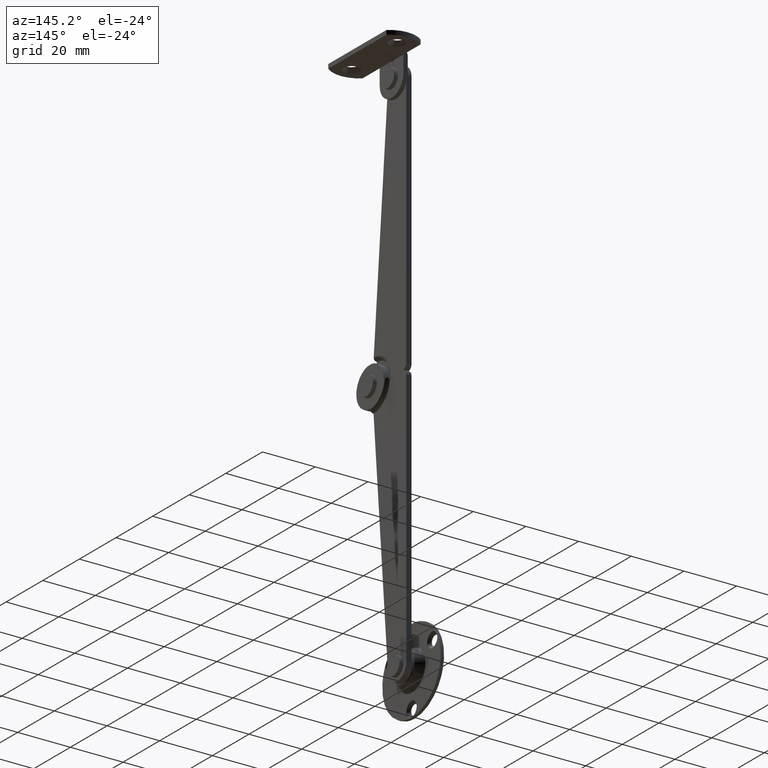
[diagram: clean part render]
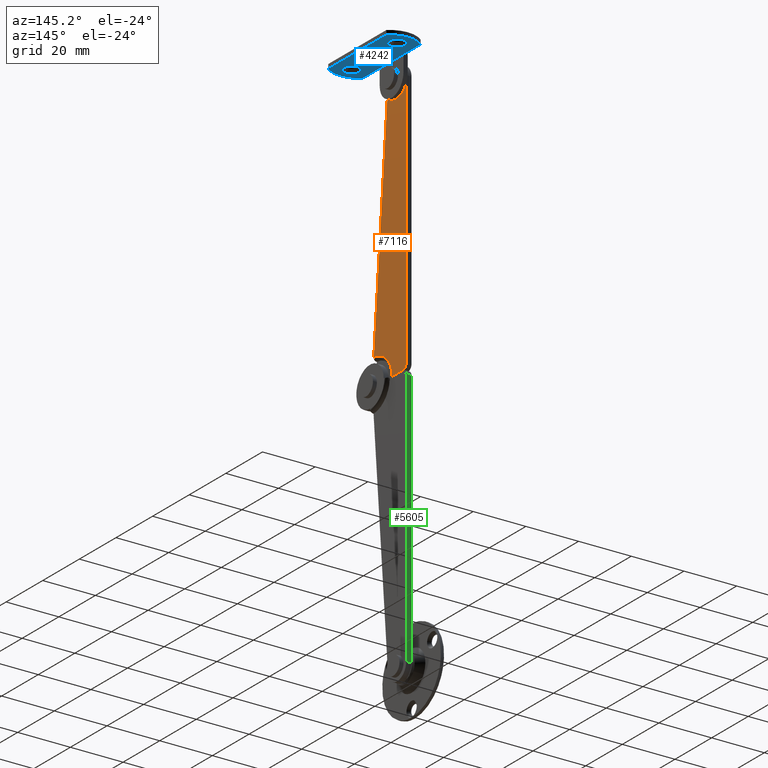
[diagram: same view with three faces highlighted in distinct colors, each labeled with its STEP entity id]
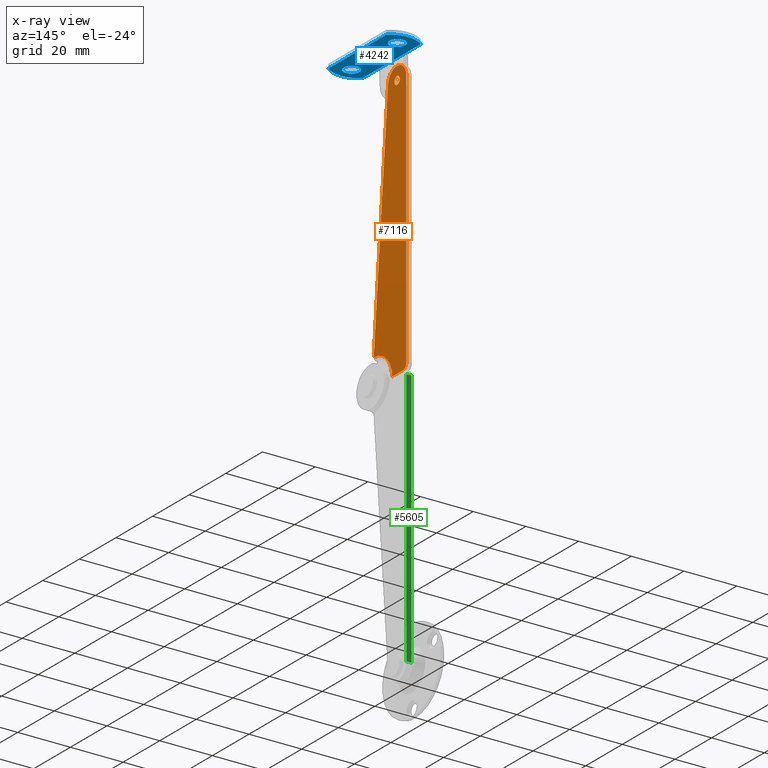
[diagram: x-ray of the same camera — body ghosted, the three highlighted faces saturated]
A machine part, auxiliary view with three faces highlighted in distinct colors.
The next image is the same camera in x-ray (body ghosted, the three faces saturated) — at least one of them is partly hidden behind the body in this view.
Their STEP definitions:

[orange] entity #7116 — the highlighted face is a freeform B-spline surface patch.
#6484=CARTESIAN_POINT('',(6.699993133544766,13.000000000000011,101.499984741210800));
#6485=VERTEX_POINT('',#6484);
#6486=CARTESIAN_POINT('',(6.699993133544766,14.495376000464150,100.117673386524900));
#6487=VERTEX_POINT('',#6486);
#6488=CARTESIAN_POINT('',(6.699993133544766,13.000000000000011,101.499984741210800));
#6489=CARTESIAN_POINT('',(6.699993133544766,14.386585735885328,101.499984741210770));
#6490=CARTESIAN_POINT('',(6.699993133544766,14.495376000464146,100.117673386524900));
#6498=(BOUNDED_CURVE()B_SPLINE_CURVE(2,(#6488,#6489,#6490),.UNSPECIFIED.,.F.,.U.)B_SPLINE_CURVE_WITH_KNOTS((3,3),(0.0,0.236331300435323),.UNSPECIFIED.)CURVE()GEOMETRIC_REPRESENTATION_ITEM()RATIONAL_B_SPLINE_CURVE((1.0,0.723120658836517,0.969723355759765))REPRESENTATION_ITEM(''));
#6499=EDGE_CURVE('',#6485,#6487,#6498,.T.);
#6501=CARTESIAN_POINT('',(6.699993133544766,11.504623999535870,99.882296095896663));
#6502=VERTEX_POINT('',#6501);
#6503=CARTESIAN_POINT('',(6.699993133544767,11.504623999535873,99.882296095896635));
#6504=CARTESIAN_POINT('',(6.699993133544766,11.500000000000014,99.941049579834086));
#6505=CARTESIAN_POINT('',(6.699993133544766,11.500000000000011,99.999984741210767));
#6506=CARTESIAN_POINT('',(6.699993133544765,11.500000000000012,101.499984741210770));
#6507=CARTESIAN_POINT('',(6.699993133544766,13.000000000000011,101.499984741210800));
#6515=(BOUNDED_CURVE()B_SPLINE_CURVE(2,(#6503,#6504,#6505,#6506,#6507),.UNSPECIFIED.,.F.,.U.)B_SPLINE_CURVE_WITH_KNOTS((3,2,3),(0.736331300435324,0.750000000000000,1.0),.UNSPECIFIED.)CURVE()GEOMETRIC_REPRESENTATION_ITEM()RATIONAL_B_SPLINE_CURVE((0.969723355759767,0.983986122350032,1.0,0.707106781186548,1.0))REPRESENTATION_ITEM(''));
#6516=EDGE_CURVE('',#6502,#6485,#6515,.T.);
#6583=CARTESIAN_POINT('',(6.699993133544766,13.000000000000011,98.499984741210753));
#6584=VERTEX_POINT('',#6583);
#6585=CARTESIAN_POINT('',(6.699993133544765,14.495376000464150,100.117673386524870));
#6586=CARTESIAN_POINT('',(6.699993133544765,14.500000000000005,100.058919902587430));
#6587=CARTESIAN_POINT('',(6.699993133544766,14.500000000000011,99.999984741210767));
#6588=CARTESIAN_POINT('',(6.699993133544765,14.500000000000016,98.499984741210767));
#6589=CARTESIAN_POINT('',(6.699993133544766,13.000000000000011,98.499984741210753));
#6597=(BOUNDED_CURVE()B_SPLINE_CURVE(2,(#6585,#6586,#6587,#6588,#6589),.UNSPECIFIED.,.F.,.U.)B_SPLINE_CURVE_WITH_KNOTS((3,2,3),(0.236331300435325,0.250000000000000,0.500000000000000),.UNSPECIFIED.)CURVE()GEOMETRIC_REPRESENTATION_ITEM()RATIONAL_B_SPLINE_CURVE((0.969723355759769,0.983986122350033,1.0,0.707106781186548,1.0))REPRESENTATION_ITEM(''));
#6598=EDGE_CURVE('',#6487,#6584,#6597,.T.);
#6632=CARTESIAN_POINT('',(6.699993133544766,13.000000000000011,98.499984741210753));
#6633=CARTESIAN_POINT('',(6.699993133544766,11.613414264114658,98.499984741210753));
#6634=CARTESIAN_POINT('',(6.699993133544766,11.504623999535866,99.882296095896677));
#6642=(BOUNDED_CURVE()B_SPLINE_CURVE(2,(#6632,#6633,#6634),.UNSPECIFIED.,.F.,.U.)B_SPLINE_CURVE_WITH_KNOTS((3,3),(0.500000000000000,0.736331300435326),.UNSPECIFIED.)CURVE()GEOMETRIC_REPRESENTATION_ITEM()RATIONAL_B_SPLINE_CURVE((1.0,0.723120658836513,0.969723355759771))REPRESENTATION_ITEM(''));
#6643=EDGE_CURVE('',#6584,#6502,#6642,.T.);
#6762=CARTESIAN_POINT('',(6.699993133544764,0.232773543082927,10.197343599077200));
#6763=VERTEX_POINT('',#6762);
#6807=CARTESIAN_POINT('',(6.699993133544765,10.200000000000010,5.684342E-014));
#6808=VERTEX_POINT('',#6807);
#6822=CARTESIAN_POINT('',(6.699993133544764,0.232773543082927,10.197343599077200));
#6823=CARTESIAN_POINT('',(6.699993133544805,10.200000000000012,9.969822912484233));
#6824=CARTESIAN_POINT('',(6.699993133544805,10.200000000000010,2.524355E-029));
#6832=(BOUNDED_CURVE()B_SPLINE_CURVE(2,(#6822,#6823,#6824),.UNSPECIFIED.,.F.,.U.)CURVE()GEOMETRIC_REPRESENTATION_ITEM()QUASI_UNIFORM_CURVE()RATIONAL_B_SPLINE_CURVE((1.0,0.715129685999807,1.0))REPRESENTATION_ITEM(''));
#6833=EDGE_CURVE('',#6763,#6808,#6832,.T.);
#7048=CARTESIAN_POINT('',(6.699993133544806,18.887472927086680,110.239473305929910));
#7049=CARTESIAN_POINT('',(6.699993133544804,-0.654699860557900,110.239473305929910));
#7050=CARTESIAN_POINT('',(6.699993133544806,18.887472927086680,-5.244501590536488));
#7051=CARTESIAN_POINT('',(6.699993133544804,-0.654699860557900,-5.244501590536488));
#7052=B_SPLINE_SURFACE_WITH_KNOTS('',1,1,((#7048,#7050),(#7049,#7051)),.UNSPECIFIED.,.F.,.F.,.U.,(2,2),(2,2),(0.0,19.542172787644589),(0.0,115.483974896466410),.UNSPECIFIED.);
#7053=CARTESIAN_POINT('',(6.699993133544765,8.020030799330062,100.447094079492500));
#7054=VERTEX_POINT('',#7053);
#7055=CARTESIAN_POINT('',(6.699993133544764,0.232773543082927,10.197343599077200));
#7056=CARTESIAN_POINT('',(6.699993133544765,8.020030799330062,100.447094079492500));
#7057=QUASI_UNIFORM_CURVE('',1,(#7055,#7056),.UNSPECIFIED.,.F.,.U.);
#7058=EDGE_CURVE('',#6763,#7054,#7057,.T.);
#7059=ORIENTED_EDGE('',*,*,#7058,.F.);
#7060=ORIENTED_EDGE('',*,*,#6833,.T.);
#7061=CARTESIAN_POINT('',(6.699993133544766,16.000000000000011,-1.127987E-013));
#7062=VERTEX_POINT('',#7061);
#7063=CARTESIAN_POINT('',(6.699993133544766,16.000000000000011,-1.127987E-013));
#7064=CARTESIAN_POINT('',(6.699993133544765,10.200000000000010,5.684342E-014));
#7065=QUASI_UNIFORM_CURVE('',1,(#7063,#7064),.UNSPECIFIED.,.F.,.U.);
#7066=EDGE_CURVE('',#7062,#6808,#7065,.T.);
#7067=ORIENTED_EDGE('',*,*,#7066,.F.);
#7068=CARTESIAN_POINT('',(6.699993133544766,18.000000000000011,1.999996185302737));
#7069=VERTEX_POINT('',#7068);
#7070=CARTESIAN_POINT('',(6.699993133544766,18.000000000000011,1.999996185302737));
#7071=CARTESIAN_POINT('',(6.699993133544766,17.999996185306497,-1.131595E-013));
#7072=CARTESIAN_POINT('',(6.699993133544766,16.000000000000011,-1.131595E-013));
#7080=(BOUNDED_CURVE()B_SPLINE_CURVE(2,(#7070,#7071,#7072),.UNSPECIFIED.,.F.,.U.)CURVE()GEOMETRIC_REPRESENTATION_ITEM()QUASI_UNIFORM_CURVE()RATIONAL_B_SPLINE_CURVE((1.0,0.707107455535781,1.0))REPRESENTATION_ITEM(''));
#7081=EDGE_CURVE('',#7069,#7062,#7080,.T.);
#7082=ORIENTED_EDGE('',*,*,#7081,.F.);
#7083=CARTESIAN_POINT('',(6.699993133544766,18.000000000000011,99.999984741210852));
#7084=VERTEX_POINT('',#7083);
#7085=CARTESIAN_POINT('',(6.699993133544766,18.000000000000011,99.999984741210852));
#7086=CARTESIAN_POINT('',(6.699993133544766,18.000000000000011,1.999996185302737));
#7087=QUASI_UNIFORM_CURVE('',1,(#7085,#7086),.UNSPECIFIED.,.F.,.U.);
#7088=EDGE_CURVE('',#7084,#7069,#7087,.T.);
#7089=ORIENTED_EDGE('',*,*,#7088,.F.);
#7090=CARTESIAN_POINT('',(6.699993133544765,8.020030799330062,100.447094079492500));
#7091=CARTESIAN_POINT('',(6.699993133544765,8.055472427973955,100.842908539388700));
#7092=CARTESIAN_POINT('',(6.699993133544759,8.204976702329081,101.547610234986810));
#7093=CARTESIAN_POINT('',(6.699993133544771,8.729471760465373,102.712558277085710));
#7094=CARTESIAN_POINT('',(6.699993133544755,9.571493150787227,103.741728513938500));
#7095=CARTESIAN_POINT('',(6.699993133544755,10.639559825549959,104.452126970152800));
#7096=CARTESIAN_POINT('',(6.699993133544764,11.605357012448760,104.829325791545900));
#7097=CARTESIAN_POINT('',(6.699993133544779,12.741385270892110,105.052558014964300));
#7098=CARTESIAN_POINT('',(6.699993133544747,14.067943707690610,104.961355801454400));
#7099=CARTESIAN_POINT('',(6.699993133544780,15.302666782361550,104.486852303385600));
#7100=CARTESIAN_POINT('',(6.699993133544721,16.395277641854040,103.750565683522500));
#7101=CARTESIAN_POINT('',(6.699993133544790,17.214530796697218,102.807635773487310));
#7102=CARTESIAN_POINT('',(6.699993133544760,17.845740020617711,101.470098300176800));
#7103=CARTESIAN_POINT('',(6.699993133544764,18.000390880476129,100.556378557983900));
#7104=CARTESIAN_POINT('',(6.699993133544766,18.000000000000011,99.999984741210852));
#7105=B_SPLINE_CURVE_WITH_KNOTS('',3,(#7090,#7091,#7092,#7093,#7094,#7095,#7096,#7097,#7098,#7099,#7100,#7101,#7102,#7103,#7104),.UNSPECIFIED.,.F.,.U.,(4,1,1,1,1,1,1,1,1,1,1,1,4),(0.000000137094867,1.192201430622015,2.146013618845815,3.815161052552515,5.126622296159052,5.961270864849338,6.914975014532722,8.583999638188598,9.895492978229958,10.849318337223410,12.518510980403700,13.591560836829000,15.260617336294180),.UNSPECIFIED.);
#7106=EDGE_CURVE('',#7054,#7084,#7105,.T.);
#7107=ORIENTED_EDGE('',*,*,#7106,.F.);
#7108=EDGE_LOOP('',(#7059,#7060,#7067,#7082,#7089,#7107));
#7109=FACE_OUTER_BOUND('',#7108,.T.);
#7110=ORIENTED_EDGE('',*,*,#6643,.T.);
#7111=ORIENTED_EDGE('',*,*,#6516,.T.);
#7112=ORIENTED_EDGE('',*,*,#6499,.T.);
#7113=ORIENTED_EDGE('',*,*,#6598,.T.);
#7114=EDGE_LOOP('',(#7110,#7111,#7112,#7113));
#7115=FACE_BOUND('',#7114,.T.);
#7116=ADVANCED_FACE('',(#7109,#7115),#7052,.T.);

[blue] entity #4242 — the highlighted face is a freeform B-spline surface patch.
#3333=CARTESIAN_POINT('',(15.064621943504211,-2.490752001528418,105.999984740381900));
#3334=VERTEX_POINT('',#3333);
#3340=CARTESIAN_POINT('',(12.299999237061931,0.500000000000070,105.999984741210600));
#3341=VERTEX_POINT('',#3340);
#3342=CARTESIAN_POINT('',(12.299999237061931,0.500000000000070,105.999984741210600));
#3343=CARTESIAN_POINT('',(12.299999237029416,-2.273171469519395,105.999984740796220));
#3344=CARTESIAN_POINT('',(15.064621943504207,-2.490752001528418,105.999984740381830));
#3352=(BOUNDED_CURVE()B_SPLINE_CURVE(2,(#3342,#3343,#3344),.UNSPECIFIED.,.F.,.U.)B_SPLINE_CURVE_WITH_KNOTS((3,3),(0.0,0.236331300271173),.UNSPECIFIED.)CURVE()GEOMETRIC_REPRESENTATION_ITEM()RATIONAL_B_SPLINE_CURVE((1.0,0.723120659028830,0.969723355417197))REPRESENTATION_ITEM(''));
#3353=EDGE_CURVE('',#3341,#3334,#3352,.T.);
#3355=CARTESIAN_POINT('',(15.535376530618290,3.490752001528553,105.999984740381900));
#3356=VERTEX_POINT('',#3355);
#3357=CARTESIAN_POINT('',(15.535376530618286,3.490752001528553,105.999984740381850));
#3358=CARTESIAN_POINT('',(15.417869561316985,3.500000000810654,105.999984740396930));
#3359=CARTESIAN_POINT('',(15.299999237123821,3.500000000794422,105.999984740413200));
#3360=CARTESIAN_POINT('',(12.299999237091987,3.500000000381287,105.999984740827530));
#3361=CARTESIAN_POINT('',(12.299999237061931,0.500000000000070,105.999984741210600));
#3369=(BOUNDED_CURVE()B_SPLINE_CURVE(2,(#3357,#3358,#3359,#3360,#3361),.UNSPECIFIED.,.F.,.U.)B_SPLINE_CURVE_WITH_KNOTS((3,2,3),(0.736331300271173,0.750000000000000,1.0),.UNSPECIFIED.)CURVE()GEOMETRIC_REPRESENTATION_ITEM()RATIONAL_B_SPLINE_CURVE((0.969723355417197,0.983986122157718,1.0,0.707106781186547,1.0))REPRESENTATION_ITEM(''));
#3370=EDGE_CURVE('',#3356,#3341,#3369,.T.);
#3462=CARTESIAN_POINT('',(18.299999237060572,0.500000000000070,105.999984741210600));
#3463=VERTEX_POINT('',#3462);
#3464=CARTESIAN_POINT('',(18.299999237060572,0.500000000000070,105.999984741210600));
#3465=CARTESIAN_POINT('',(18.299999237093076,3.273171469519531,105.999984740796220));
#3466=CARTESIAN_POINT('',(15.535376530618286,3.490752001528553,105.999984740381850));
#3474=(BOUNDED_CURVE()B_SPLINE_CURVE(2,(#3464,#3465,#3466),.UNSPECIFIED.,.F.,.U.)B_SPLINE_CURVE_WITH_KNOTS((3,3),(0.500000000000000,0.736331300271173),.UNSPECIFIED.)CURVE()GEOMETRIC_REPRESENTATION_ITEM()RATIONAL_B_SPLINE_CURVE((1.0,0.723120659028830,0.969723355417197))REPRESENTATION_ITEM(''));
#3475=EDGE_CURVE('',#3463,#3356,#3474,.T.);
#3477=CARTESIAN_POINT('',(15.064621943504209,-2.490752001528418,105.999984740381850));
#3478=CARTESIAN_POINT('',(15.182128912805513,-2.500000000810519,105.999984740396930));
#3479=CARTESIAN_POINT('',(15.299999236998680,-2.500000000794286,105.999984740413200));
#3480=CARTESIAN_POINT('',(18.299999237030512,-2.500000000381149,105.999984740827530));
#3481=CARTESIAN_POINT('',(18.299999237060572,0.500000000000070,105.999984741210600));
#3489=(BOUNDED_CURVE()B_SPLINE_CURVE(2,(#3477,#3478,#3479,#3480,#3481),.UNSPECIFIED.,.F.,.U.)B_SPLINE_CURVE_WITH_KNOTS((3,2,3),(0.236331300271173,0.250000000000000,0.500000000000000),.UNSPECIFIED.)CURVE()GEOMETRIC_REPRESENTATION_ITEM()RATIONAL_B_SPLINE_CURVE((0.969723355417197,0.983986122157718,1.0,0.707106781186547,1.0))REPRESENTATION_ITEM(''));
#3490=EDGE_CURVE('',#3334,#3463,#3489,.T.);
#3637=CARTESIAN_POINT('',(15.064621943504211,22.509247998471519,105.999984740381900));
#3638=VERTEX_POINT('',#3637);
#3644=CARTESIAN_POINT('',(12.299999237061931,25.500000000000000,105.999984741210600));
#3645=VERTEX_POINT('',#3644);
#3646=CARTESIAN_POINT('',(12.299999237061931,25.500000000000000,105.999984741210600));
#3647=CARTESIAN_POINT('',(12.299999237029411,22.726828530480539,105.999984740796180));
#3648=CARTESIAN_POINT('',(15.064621943504207,22.509247998471515,105.999984740381830));
#3656=(BOUNDED_CURVE()B_SPLINE_CURVE(2,(#3646,#3647,#3648),.UNSPECIFIED.,.F.,.U.)B_SPLINE_CURVE_WITH_KNOTS((3,3),(0.0,0.236331300271173),.UNSPECIFIED.)CURVE()GEOMETRIC_REPRESENTATION_ITEM()RATIONAL_B_SPLINE_CURVE((1.0,0.723120659028830,0.969723355417197))REPRESENTATION_ITEM(''));
#3657=EDGE_CURVE('',#3645,#3638,#3656,.T.);
#3659=CARTESIAN_POINT('',(15.535376530618290,28.490752001528481,105.999984740381900));
#3660=VERTEX_POINT('',#3659);
#3661=CARTESIAN_POINT('',(15.535376530618286,28.490752001528485,105.999984740381850));
#3662=CARTESIAN_POINT('',(15.417869561316985,28.500000000810584,105.999984740396930));
#3663=CARTESIAN_POINT('',(15.299999237123821,28.500000000794351,105.999984740413200));
#3664=CARTESIAN_POINT('',(12.299999237091987,28.500000000381210,105.999984740827530));
#3665=CARTESIAN_POINT('',(12.299999237061931,25.500000000000000,105.999984741210600));
#3673=(BOUNDED_CURVE()B_SPLINE_CURVE(2,(#3661,#3662,#3663,#3664,#3665),.UNSPECIFIED.,.F.,.U.)B_SPLINE_CURVE_WITH_KNOTS((3,2,3),(0.736331300271173,0.750000000000000,1.0),.UNSPECIFIED.)CURVE()GEOMETRIC_REPRESENTATION_ITEM()RATIONAL_B_SPLINE_CURVE((0.969723355417197,0.983986122157718,1.0,0.707106781186547,1.0))REPRESENTATION_ITEM(''));
#3674=EDGE_CURVE('',#3660,#3645,#3673,.T.);
#3766=CARTESIAN_POINT('',(18.299999237060572,25.500000000000000,105.999984741210600));
#3767=VERTEX_POINT('',#3766);
#3768=CARTESIAN_POINT('',(18.299999237060572,25.500000000000000,105.999984741210600));
#3769=CARTESIAN_POINT('',(18.299999237093076,28.273171469519458,105.999984740796220));
#3770=CARTESIAN_POINT('',(15.535376530618286,28.490752001528485,105.999984740381850));
#3778=(BOUNDED_CURVE()B_SPLINE_CURVE(2,(#3768,#3769,#3770),.UNSPECIFIED.,.F.,.U.)B_SPLINE_CURVE_WITH_KNOTS((3,3),(0.500000000000000,0.736331300271173),.UNSPECIFIED.)CURVE()GEOMETRIC_REPRESENTATION_ITEM()RATIONAL_B_SPLINE_CURVE((1.0,0.723120659028830,0.969723355417197))REPRESENTATION_ITEM(''));
#3779=EDGE_CURVE('',#3767,#3660,#3778,.T.);
#3781=CARTESIAN_POINT('',(15.064621943504209,22.509247998471515,105.999984740381850));
#3782=CARTESIAN_POINT('',(15.182128912805513,22.499999999189416,105.999984740396930));
#3783=CARTESIAN_POINT('',(15.299999236998680,22.499999999205642,105.999984740413200));
#3784=CARTESIAN_POINT('',(18.299999237030512,22.499999999618776,105.999984740827530));
#3785=CARTESIAN_POINT('',(18.299999237060572,25.500000000000000,105.999984741210600));
#3793=(BOUNDED_CURVE()B_SPLINE_CURVE(2,(#3781,#3782,#3783,#3784,#3785),.UNSPECIFIED.,.F.,.U.)B_SPLINE_CURVE_WITH_KNOTS((3,2,3),(0.236331300271173,0.250000000000000,0.500000000000000),.UNSPECIFIED.)CURVE()GEOMETRIC_REPRESENTATION_ITEM()RATIONAL_B_SPLINE_CURVE((0.969723355417197,0.983986122157718,1.0,0.707106781186547,1.0))REPRESENTATION_ITEM(''));
#3794=EDGE_CURVE('',#3638,#3767,#3793,.T.);
#4165=CARTESIAN_POINT('',(8.150648500080823,-7.073174929246540,105.999984741210600));
#4166=CARTESIAN_POINT('',(22.449365581517242,-7.073174929246540,105.999984741210600));
#4167=CARTESIAN_POINT('',(8.150648500080823,33.073175908259181,105.999984741210600));
#4168=CARTESIAN_POINT('',(22.449365581517242,33.073175908259181,105.999984741210600));
#4169=B_SPLINE_SURFACE_WITH_KNOTS('',1,1,((#4165,#4167),(#4166,#4168)),.UNSPECIFIED.,.F.,.F.,.U.,(2,2),(2,2),(0.0,14.298717081436420),(0.0,40.146350837505722),.UNSPECIFIED.);
#4170=CARTESIAN_POINT('',(21.800014495849702,28.849329025348851,105.999984741210800));
#4171=VERTEX_POINT('',#4170);
#4172=CARTESIAN_POINT('',(8.799999237060780,28.849342346191349,105.999984741210800));
#4173=VERTEX_POINT('',#4172);
#4174=CARTESIAN_POINT('',(21.800014495849659,28.849329025348801,105.999984741210800));
#4175=CARTESIAN_POINT('',(15.300012563372670,34.409045100587413,105.999984741210810));
#4176=CARTESIAN_POINT('',(8.799999370135730,28.849342190609480,105.999984741210800));
#4184=(BOUNDED_CURVE()B_SPLINE_CURVE(2,(#4174,#4175,#4176),.UNSPECIFIED.,.F.,.U.)CURVE()GEOMETRIC_REPRESENTATION_ITEM()QUASI_UNIFORM_CURVE()RATIONAL_B_SPLINE_CURVE((1.0,0.759933560798304,1.0))REPRESENTATION_ITEM(''));
#4185=EDGE_CURVE('',#4171,#4173,#4184,.T.);
#4186=ORIENTED_EDGE('',*,*,#4185,.F.);
#4187=CARTESIAN_POINT('',(21.800014495849702,-2.849329025348565,105.999984741210800));
#4188=VERTEX_POINT('',#4187);
#4189=CARTESIAN_POINT('',(21.800014495849702,-2.849329025348565,105.999984741210800));
#4190=CARTESIAN_POINT('',(21.800014495849702,28.849329025348851,105.999984741210800));
#4191=QUASI_UNIFORM_CURVE('',1,(#4189,#4190),.UNSPECIFIED.,.F.,.U.);
#4192=EDGE_CURVE('',#4188,#4171,#4191,.T.);
#4193=ORIENTED_EDGE('',*,*,#4192,.F.);
#4194=CARTESIAN_POINT('',(8.799999237060780,-2.849342076785340,105.999984741210800));
#4195=VERTEX_POINT('',#4194);
#4196=CARTESIAN_POINT('',(8.799999237060773,-2.849342076785343,105.999984741210800));
#4197=CARTESIAN_POINT('',(15.300012448156304,-8.409045199136564,105.999984741210800));
#4198=CARTESIAN_POINT('',(21.800014495849709,-2.849329025348578,105.999984741210800));
#4206=(BOUNDED_CURVE()B_SPLINE_CURVE(2,(#4196,#4197,#4198),.UNSPECIFIED.,.F.,.U.)CURVE()GEOMETRIC_REPRESENTATION_ITEM()QUASI_UNIFORM_CURVE()RATIONAL_B_SPLINE_CURVE((1.0,0.759933555107097,1.0))REPRESENTATION_ITEM(''));
#4207=EDGE_CURVE('',#4195,#4188,#4206,.T.);
#4208=ORIENTED_EDGE('',*,*,#4207,.F.);
#4209=CARTESIAN_POINT('',(8.799999237060868,6.500000000000000,105.999984741210800));
#4210=VERTEX_POINT('',#4209);
#4211=CARTESIAN_POINT('',(8.799999237060868,6.500000000000000,105.999984741210800));
#4212=CARTESIAN_POINT('',(8.799999237060780,-2.849342076785340,105.999984741210800));
#4213=QUASI_UNIFORM_CURVE('',1,(#4211,#4212),.UNSPECIFIED.,.F.,.U.);
#4214=EDGE_CURVE('',#4210,#4195,#4213,.T.);
#4215=ORIENTED_EDGE('',*,*,#4214,.F.);
#4216=CARTESIAN_POINT('',(8.799999237060780,19.500000000000000,105.999984741210600));
#4217=VERTEX_POINT('',#4216);
#4218=CARTESIAN_POINT('',(8.799999237060780,19.500000000000000,105.999984741210600));
#4219=CARTESIAN_POINT('',(8.799999237060868,6.500000000000000,105.999984741210800));
#4220=QUASI_UNIFORM_CURVE('',1,(#4218,#4219),.UNSPECIFIED.,.F.,.U.);
#4221=EDGE_CURVE('',#4217,#4210,#4220,.T.);
#4222=ORIENTED_EDGE('',*,*,#4221,.F.);
#4223=CARTESIAN_POINT('',(8.799999237060780,28.849342346191349,105.999984741210800));
#4224=CARTESIAN_POINT('',(8.799999237060780,19.500000000000000,105.999984741210600));
#4225=QUASI_UNIFORM_CURVE('',1,(#4223,#4224),.UNSPECIFIED.,.F.,.U.);
#4226=EDGE_CURVE('',#4173,#4217,#4225,.T.);
#4227=ORIENTED_EDGE('',*,*,#4226,.F.);
#4228=EDGE_LOOP('',(#4186,#4193,#4208,#4215,#4222,#4227));
#4229=FACE_OUTER_BOUND('',#4228,.T.);
#4230=ORIENTED_EDGE('',*,*,#3779,.T.);
#4231=ORIENTED_EDGE('',*,*,#3674,.T.);
#4232=ORIENTED_EDGE('',*,*,#3657,.T.);
#4233=ORIENTED_EDGE('',*,*,#3794,.T.);
#4234=EDGE_LOOP('',(#4230,#4231,#4232,#4233));
#4235=FACE_BOUND('',#4234,.T.);
#4236=ORIENTED_EDGE('',*,*,#3475,.T.);
#4237=ORIENTED_EDGE('',*,*,#3370,.T.);
#4238=ORIENTED_EDGE('',*,*,#3353,.T.);
#4239=ORIENTED_EDGE('',*,*,#3490,.T.);
#4240=EDGE_LOOP('',(#4236,#4237,#4238,#4239));
#4241=FACE_BOUND('',#4240,.T.);
#4242=ADVANCED_FACE('',(#4229,#4235,#4241),#4169,.F.);

[green] entity #5605 — the highlighted face is a freeform B-spline surface patch.
#5417=CARTESIAN_POINT('',(4.699993133545027,17.999999999999989,-2.000019073486273));
#5418=VERTEX_POINT('',#5417);
#5432=CARTESIAN_POINT('',(4.699993133545039,17.999999999999989,-100.000007629394400));
#5433=VERTEX_POINT('',#5432);
#5434=CARTESIAN_POINT('',(4.699993133545039,17.999999999999989,-100.000007629394400));
#5435=CARTESIAN_POINT('',(4.699993133545027,17.999999999999989,-2.000019073486273));
#5436=QUASI_UNIFORM_CURVE('',1,(#5434,#5435),.UNSPECIFIED.,.F.,.U.);
#5437=EDGE_CURVE('',#5433,#5418,#5436,.T.);
#5479=CARTESIAN_POINT('',(6.699993133545039,17.999999999999989,-100.000007629394400));
#5480=VERTEX_POINT('',#5479);
#5499=CARTESIAN_POINT('',(6.699993133545027,17.999999999999989,-2.000019073486273));
#5500=VERTEX_POINT('',#5499);
#5501=CARTESIAN_POINT('',(6.699993133545039,17.999999999999989,-100.000007629394400));
#5502=CARTESIAN_POINT('',(6.699993133545027,17.999999999999989,-2.000019073486273));
#5503=QUASI_UNIFORM_CURVE('',1,(#5501,#5502),.UNSPECIFIED.,.F.,.U.);
#5504=EDGE_CURVE('',#5480,#5500,#5503,.T.);
#5580=CARTESIAN_POINT('',(6.699993133545039,17.999999999999989,-100.000007629394400));
#5581=CARTESIAN_POINT('',(4.699993133545039,17.999999999999989,-100.000007629394400));
#5582=QUASI_UNIFORM_CURVE('',1,(#5580,#5581),.UNSPECIFIED.,.F.,.U.);
#5583=EDGE_CURVE('',#5480,#5433,#5582,.T.);
#5590=CARTESIAN_POINT('',(4.600093137421415,17.999999999999989,2.895080164938350));
#5591=CARTESIAN_POINT('',(4.600093137421427,17.999999999999989,-104.895109496383600));
#5592=CARTESIAN_POINT('',(6.799893183312820,17.999999999999989,2.895080164938350));
#5593=CARTESIAN_POINT('',(6.799893183312832,17.999999999999989,-104.895109496383600));
#5594=B_SPLINE_SURFACE_WITH_KNOTS('',1,1,((#5590,#5592),(#5591,#5593)),.UNSPECIFIED.,.F.,.F.,.U.,(2,2),(2,2),(0.0,107.790189661321900),(0.0,2.199800045891405),.UNSPECIFIED.);
#5595=ORIENTED_EDGE('',*,*,#5437,.T.);
#5596=CARTESIAN_POINT('',(6.699993133545027,17.999999999999989,-2.000019073486273));
#5597=CARTESIAN_POINT('',(4.699993133545027,17.999999999999989,-2.000019073486273));
#5598=QUASI_UNIFORM_CURVE('',1,(#5596,#5597),.UNSPECIFIED.,.F.,.U.);
#5599=EDGE_CURVE('',#5500,#5418,#5598,.T.);
#5600=ORIENTED_EDGE('',*,*,#5599,.F.);
#5601=ORIENTED_EDGE('',*,*,#5504,.F.);
#5602=ORIENTED_EDGE('',*,*,#5583,.T.);
#5603=EDGE_LOOP('',(#5595,#5600,#5601,#5602));
#5604=FACE_OUTER_BOUND('',#5603,.T.);
#5605=ADVANCED_FACE('',(#5604),#5594,.F.);